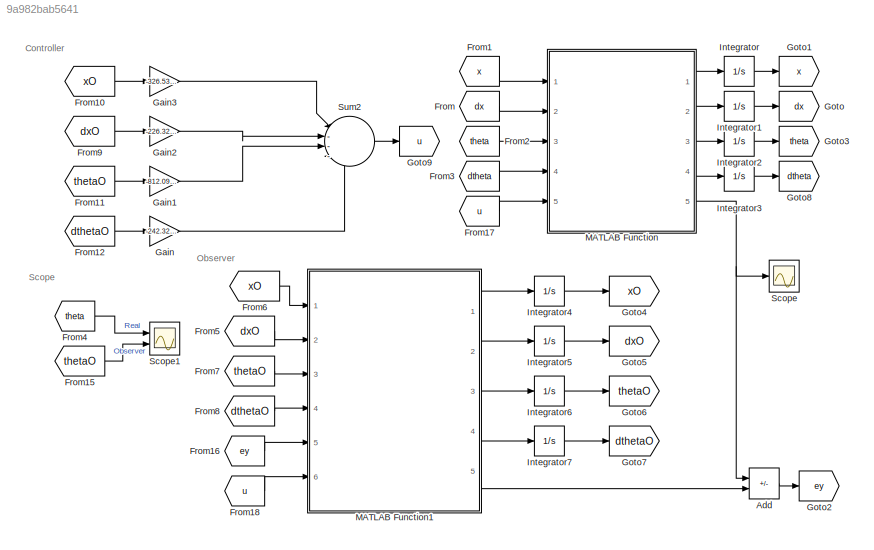
MODEL slx_9a982bab5641
KIND model
CONFIG AbsTol = auto
CONFIG EnableMultiTasking = off
CONFIG FixedStep = auto
CONFIG MaxStep = 0.01
CONFIG MinStep = auto
CONFIG RelTol = 1e-3
CONFIG SampleTimeConstraint = Unconstrained
CONFIG SolverName = VariableStepAuto
CONFIG StartTime = 0.0
CONFIG StopTime = 10.0
BLOCK [Sum] Add
  IconShape = rectangular
  Inputs = +-
  Ports = [2, 1]
BLOCK [From] From
  GotoTag = dx
BLOCK [From] From1
  GotoTag = x
BLOCK [From] From10
  GotoTag = xO
BLOCK [From] From11
  GotoTag = thetaO
BLOCK [From] From12
  GotoTag = dthetaO
BLOCK [From] From15
  GotoTag = thetaO
BLOCK [From] From16
  GotoTag = ey
BLOCK [From] From17
  GotoTag = u
BLOCK [From] From18
  GotoTag = u
BLOCK [From] From2
  GotoTag = theta
BLOCK [From] From3
  GotoTag = dtheta
BLOCK [From] From4
  GotoTag = theta
BLOCK [From] From5
  GotoTag = dxO
BLOCK [From] From6
  GotoTag = xO
BLOCK [From] From7
  GotoTag = thetaO
BLOCK [From] From8
  GotoTag = dthetaO
BLOCK [From] From9
  GotoTag = dxO
BLOCK [Gain] Gain
  Gain = -242.3265
BLOCK [Gain] Gain1
  Gain = -812.0906
BLOCK [Gain] Gain2
  Gain = -226.3265
BLOCK [Gain] Gain3
  Gain = -326.5306
BLOCK [Goto] Goto
  GotoTag = dx
BLOCK [Goto] Goto1
  GotoTag = x
BLOCK [Goto] Goto2
  GotoTag = ey
BLOCK [Goto] Goto3
  GotoTag = theta
BLOCK [Goto] Goto4
  GotoTag = xO
BLOCK [Goto] Goto5
  GotoTag = dxO
BLOCK [Goto] Goto6
  GotoTag = thetaO
BLOCK [Goto] Goto7
  GotoTag = dthetaO
BLOCK [Goto] Goto8
  GotoTag = dtheta
BLOCK [Goto] Goto9
  GotoTag = u
BLOCK [Integrator] Integrator
  Ports = [1, 1]
BLOCK [Integrator] Integrator1
  Ports = [1, 1]
BLOCK [Integrator] Integrator2
  Ports = [1, 1]
BLOCK [Integrator] Integrator3
  InitialCondition = 10*pi/180
  Ports = [1, 1]
BLOCK [Integrator] Integrator4
  Ports = [1, 1]
BLOCK [Integrator] Integrator5
  Ports = [1, 1]
BLOCK [Integrator] Integrator6
  Ports = [1, 1]
BLOCK [Integrator] Integrator7
  Ports = [1, 1]
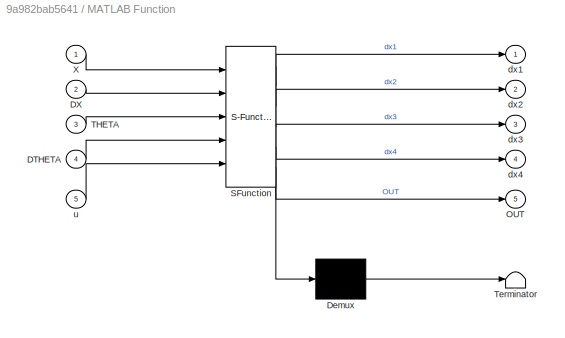
BLOCK [SubSystem] MATLAB Function
  ErrorFcn = Stateflow.Translate.translate
  PermitHierarchicalResolution = ExplicitOnly
  Ports = [5, 5]
  RequestExecContextInheritance = off
  SFBlockType = MATLAB Function
  TreatAsAtomicUnit = on
BLOCK [Demux] MATLAB Function/ Demux 
  Outputs = 1
  Ports = [1, 1]
BLOCK [S-Function] MATLAB Function/ SFunction 
  EnableBusSupport = on
  FunctionName = sf_sfun
  PortCounts = [5 6]
  Ports = [5, 6]
  SFcnIsStateOwnerBlock = off
  SFunctionDeploymentMode = off
  Tag = Stateflow S-Function 2
BLOCK [Terminator] MATLAB Function/ Terminator 
BLOCK [Inport] MATLAB Function/DTHETA
  Port = 4
BLOCK [Inport] MATLAB Function/DX
  Port = 2
BLOCK [Outport] MATLAB Function/OUT
  Port = 5
BLOCK [Inport] MATLAB Function/THETA
  Port = 3
BLOCK [Inport] MATLAB Function/X
BLOCK [Outport] MATLAB Function/dx1
BLOCK [Outport] MATLAB Function/dx2
  Port = 2
BLOCK [Outport] MATLAB Function/dx3
  Port = 3
BLOCK [Outport] MATLAB Function/dx4
  Port = 4
BLOCK [Inport] MATLAB Function/u
  Port = 5
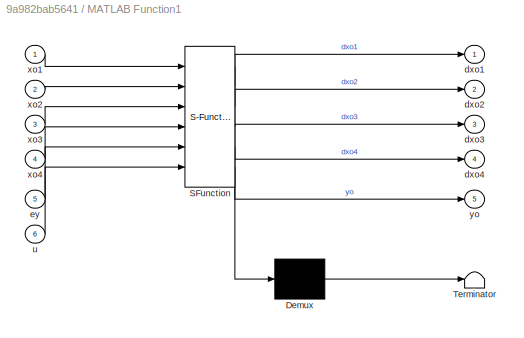
BLOCK [SubSystem] MATLAB Function1
  ErrorFcn = Stateflow.Translate.translate
  PermitHierarchicalResolution = ExplicitOnly
  Ports = [6, 5]
  RequestExecContextInheritance = off
  SFBlockType = MATLAB Function
  TreatAsAtomicUnit = on
BLOCK [Demux] MATLAB Function1/ Demux 
  Outputs = 1
  Ports = [1, 1]
BLOCK [S-Function] MATLAB Function1/ SFunction 
  EnableBusSupport = on
  FunctionName = sf_sfun
  PortCounts = [6 6]
  Ports = [6, 6]
  SFcnIsStateOwnerBlock = off
  SFunctionDeploymentMode = off
  Tag = Stateflow S-Function 1
BLOCK [Terminator] MATLAB Function1/ Terminator 
BLOCK [Outport] MATLAB Function1/dxo1
BLOCK [Outport] MATLAB Function1/dxo2
  Port = 2
BLOCK [Outport] MATLAB Function1/dxo3
  Port = 3
BLOCK [Outport] MATLAB Function1/dxo4
  Port = 4
BLOCK [Inport] MATLAB Function1/ey
  Port = 5
BLOCK [Inport] MATLAB Function1/u
  Port = 6
BLOCK [Inport] MATLAB Function1/xo1
BLOCK [Inport] MATLAB Function1/xo2
  Port = 2
BLOCK [Inport] MATLAB Function1/xo3
  Port = 3
BLOCK [Inport] MATLAB Function1/xo4
  Port = 4
BLOCK [Outport] MATLAB Function1/yo
  Port = 5
BLOCK [Scope] Scope
  Floating = off
  NumInputPorts = 1
  Ports = [1]
  ScopeSpecificationString = Simulink.scopes.TimeScopeBlockCfg('CurrentConfiguration', extmgr.ConfigurationSet(extmgr.Configuration('Core','General UI',true),extmgr.Configuration('Core','Source UI',true),extmgr.Configuration('Sources','WiredSimulink',true),extmgr.Configuration('Visuals','Time Domain',true,'SerializedDisplays',{struct('MinYLimReal','-1.21451','MaxYLimReal','1.07049','YLabelReal','','MinYLimMag','0.00000','MaxY...<+1373ch>
BLOCK [Scope] Scope1
  Floating = off
  NumInputPorts = 2
  Ports = [2]
  ScopeSpecificationString = Simulink.scopes.TimeScopeBlockCfg('CurrentConfiguration', extmgr.ConfigurationSet(extmgr.Configuration('Core','General UI',true),extmgr.Configuration('Core','Source UI',true),extmgr.Configuration('Sources','WiredSimulink',true,'DataLoggingVariableName','ScopeData1'),extmgr.Configuration('Visuals','Time Domain',true,'SerializedDisplays',{struct('MinYLimReal','-0.1889','MaxYLimReal','0.13571','YLabe...<+1639ch>
BLOCK [Sum] Sum2
  Inputs = |----
  Ports = [4, 1]
ANNOTATION (root): Controller
ANNOTATION (root): Observer
ANNOTATION (root): Scope
LINE Add:1 -> Goto2:1
LINE From10:1 -> Gain3:1
LINE From11:1 -> Gain1:1
LINE From12:1 -> Gain:1
LINE From15:1 -> Scope1:2
LINE From16:1 -> MATLAB Function1:5
LINE From17:1 -> MATLAB Function:5
LINE From18:1 -> MATLAB Function1:6
LINE From1:1 -> MATLAB Function:1
LINE From2:1 -> MATLAB Function:3
LINE From3:1 -> MATLAB Function:4
LINE From4:1 -> Scope1:1
LINE From5:1 -> MATLAB Function1:2
LINE From6:1 -> MATLAB Function1:1
LINE From7:1 -> MATLAB Function1:3
LINE From8:1 -> MATLAB Function1:4
LINE From9:1 -> Gain2:1
LINE From:1 -> MATLAB Function:2
LINE Gain1:1 -> Sum2:3
LINE Gain2:1 -> Sum2:2
LINE Gain3:1 -> Sum2:1
LINE Gain:1 -> Sum2:4
LINE Integrator1:1 -> Goto:1
LINE Integrator2:1 -> Goto3:1
LINE Integrator3:1 -> Goto8:1
LINE Integrator4:1 -> Goto4:1
LINE Integrator5:1 -> Goto5:1
LINE Integrator6:1 -> Goto6:1
LINE Integrator7:1 -> Goto7:1
LINE Integrator:1 -> Goto1:1
LINE MATLAB Function1:1 -> Integrator4:1
LINE MATLAB Function1:2 -> Integrator5:1
LINE MATLAB Function1:3 -> Integrator6:1
LINE MATLAB Function1:4 -> Integrator7:1
LINE MATLAB Function1:5 -> Add:2
LINE MATLAB Function:1 -> Integrator:1
LINE MATLAB Function:2 -> Integrator1:1
LINE MATLAB Function:3 -> Integrator2:1
LINE MATLAB Function:4 -> Integrator3:1
NET MATLAB Function:5 -> Add:1, Scope:1
LINE Sum2:1 -> Goto9:1
note: NET lines group one-source signal fan-out (src -> all destinations, sorted); 1:1 wires keep LINE
CHART MATLAB Function1 states=1 transitions=1
  STATE_LABEL 'eML_blk_kernel()'
  STATE_LABEL 'SCRIPT:\nfunction [dxo1,dxo2,dxo3,dxo4,yo] = obs(xo1,xo2,xo3,xo4,ey,u)\n\n\nm = 0.1 ;\nM = 1.0 ;\nL = 1.0 ;\ng = 10 ;\nk = 1 ;\nR = 100 ;\nr = 0.02 ;\n\nA = [ 0 ,           1           ,         0        , 0 ;\n      0 ,   (-k^2/(M*R*r^2))    ,       -m*g/M     , 0 ;\n      0 ,            0          ,         0        , 1 ;\n      0 ,   (k^2/(M*R*r^2*L))   ,  ((M+m)*g/(M*L)) , 0 ] ;\n\nB = [0 ; k/(M*R*r) ; 0 ;  -k...<+215ch>'
CHART MATLAB Function states=1 transitions=1
  STATE_LABEL 'eML_blk_kernel()'
  STATE_LABEL 'SCRIPT:\nfunction [dx1,dx2,dx3,dx4,OUT] = Lsys(X,DX,THETA,DTHETA,u)\n\n\nm = 0.1 ;\nM = 1.0 ;\nL = 1.0 ;\ng = 10 ;\nk = 1 ;\nR = 100 ;\nr = 0.02 ;\n\nA = [ 0 ,           1           ,         0        , 0 ;\n      0 ,   (-k^2/(M*R*r^2))    ,       -m*g/M     , 0 ;\n      0 ,            0          ,         0        , 1 ;\n      0 ,   (k^2/(M*R*r^2*L))   ,  ((M+m)*g/(M*L)) , 0 ] ;\n\nB = [0 ; k/(M*R*r) ; 0 ;  -k/(M...<+152ch>'
CHART  states=0 transitions=0
CHART  states=0 transitions=0
